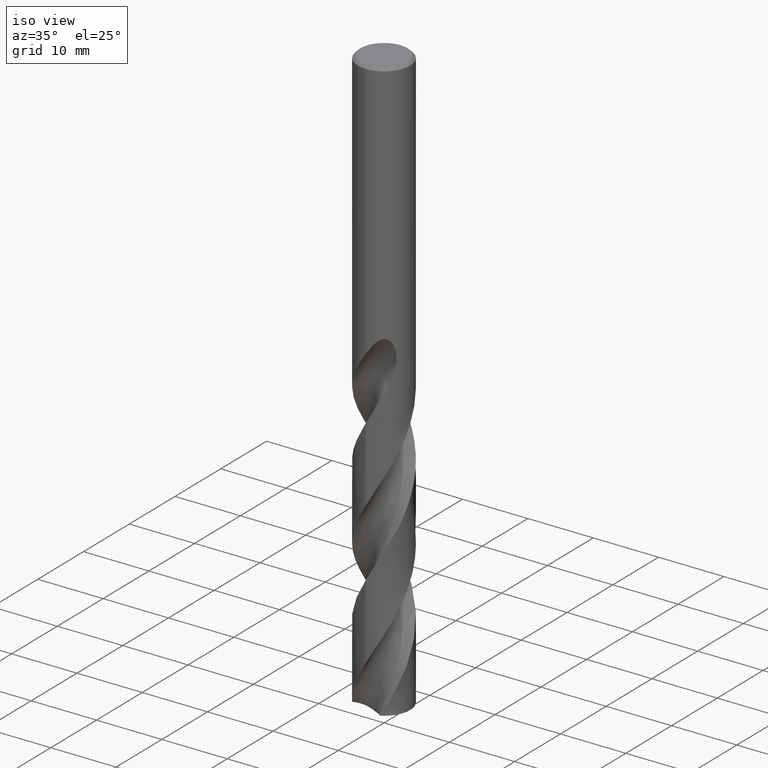
[diagram: clean part render]
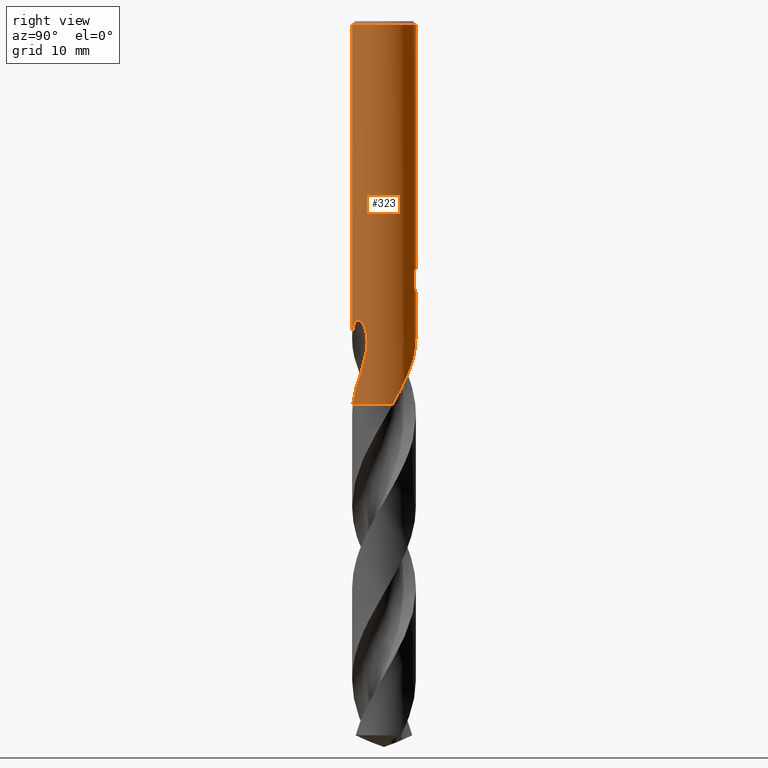
[diagram: tour spotlight — one face highlighted and labeled with its STEP entity id]
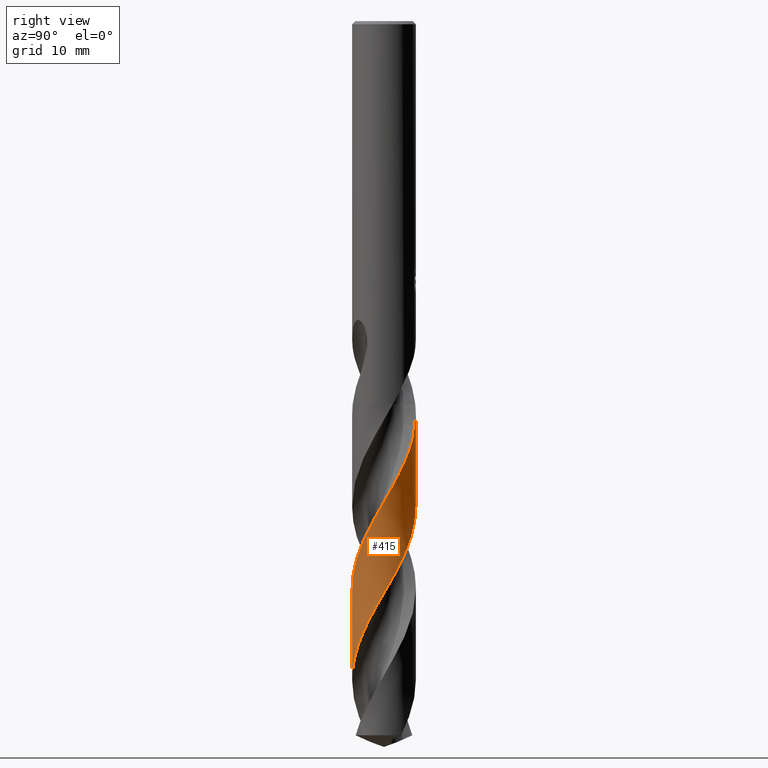
[diagram: tour spotlight — one face highlighted and labeled with its STEP entity id]
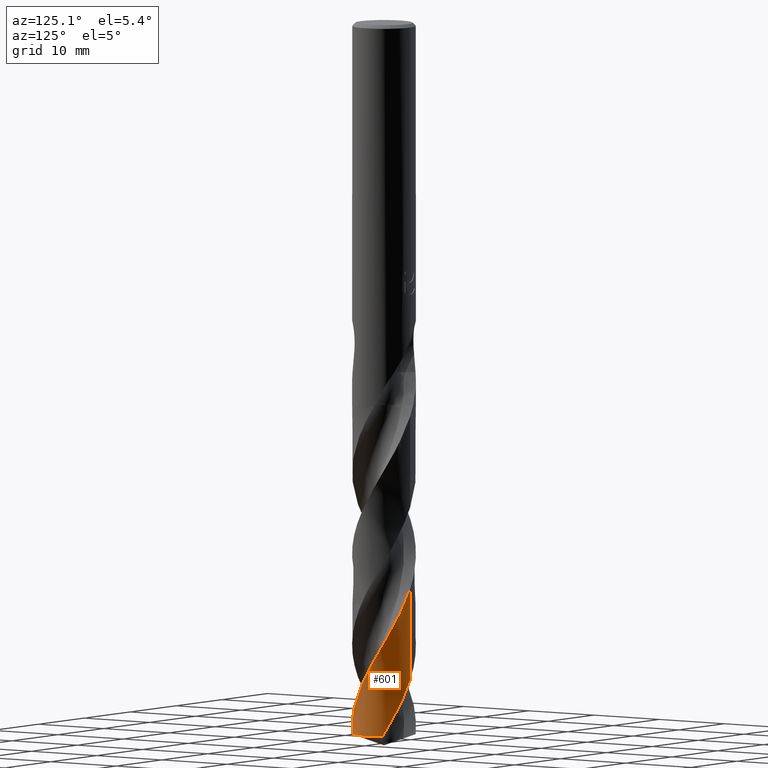
[diagram: tour spotlight — one face highlighted and labeled with its STEP entity id]
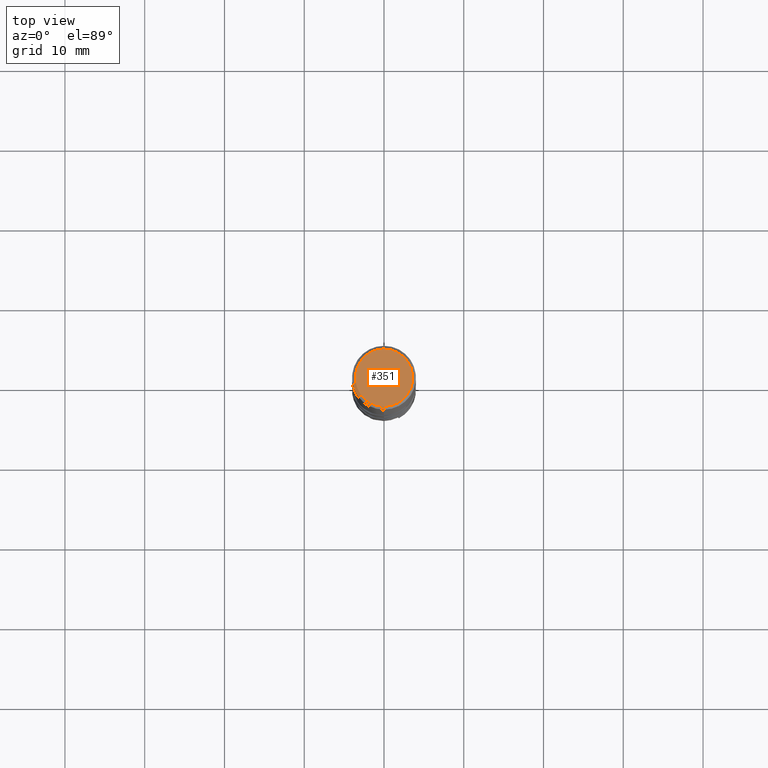
[diagram: tour spotlight — one face highlighted and labeled with its STEP entity id]
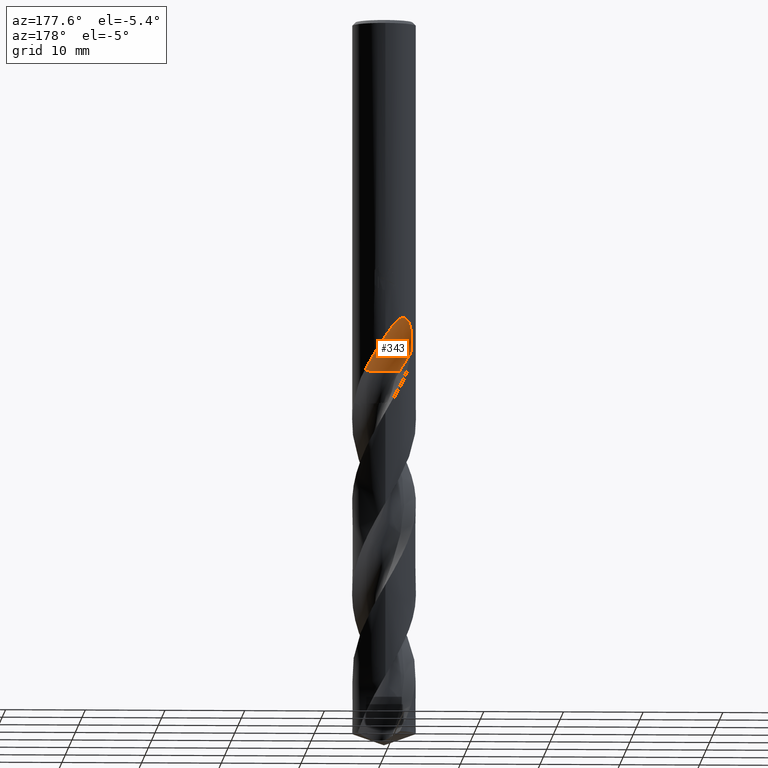
[diagram: tour spotlight — one face highlighted and labeled with its STEP entity id]
A machine part: a face-by-face anatomy tour. The part has 44 B-rep faces; the first image is the clean iso view, then the 5 largest visible faces are spotlighted one at a time (largest first), each with its STEP entity span.

Face 1 — right view, entity #323. In plain terms, the highlighted cylindrical surface (edge-blend (fillet) strip) has radius 4 mm, axis along (-0, -0, 1).
Definition (entity closure, byte-faithful):
#281=VERTEX_POINT('',#781);
#295=EDGE_CURVE('',#595,#367,#795,.T.);
#323=ADVANCED_FACE('',(#826),#827,.T.);
#345=VERTEX_POINT('',#851);
#361=EDGE_CURVE('',#407,#367,#869,.T.);
#365=VERTEX_POINT('',#874);
#367=VERTEX_POINT('',#876);
#381=EDGE_CURVE('',#627,#447,#891,.T.);
#385=EDGE_CURVE('',#399,#595,#895,.T.);
#391=EDGE_CURVE('',#527,#433,#902,.T.);
#393=EDGE_CURVE('',#487,#743,#904,.T.);
#399=VERTEX_POINT('',#911);
#407=VERTEX_POINT('',#919);
#417=EDGE_CURVE('',#645,#527,#930,.T.);
#425=EDGE_CURVE('',#627,#487,#940,.T.);
#433=VERTEX_POINT('',#948);
#439=EDGE_CURVE('',#365,#345,#955,.T.);
#441=EDGE_CURVE('',#281,#475,#957,.T.);
#447=VERTEX_POINT('',#963);
#475=VERTEX_POINT('',#994);
#477=EDGE_CURVE('',#433,#399,#996,.T.);
#487=VERTEX_POINT('',#1007);
#507=VERTEX_POINT('',#1029);
#513=EDGE_CURVE('',#281,#743,#1035,.T.);
#527=VERTEX_POINT('',#1051);
#533=EDGE_CURVE('',#621,#447,#1058,.T.);
#565=EDGE_CURVE('',#345,#621,#1092,.T.);
#595=VERTEX_POINT('',#1123);
#621=VERTEX_POINT('',#1152);
#627=VERTEX_POINT('',#1158);
#645=VERTEX_POINT('',#1178);
#679=EDGE_CURVE('',#365,#507,#1215,.T.);
#711=EDGE_CURVE('',#475,#645,#1249,.T.);
#717=EDGE_CURVE('',#407,#507,#1256,.T.);
#743=VERTEX_POINT('',#1285);
#781=CARTESIAN_POINT('',(-6.37761657961682E-016,4.0,-34.0310253601033));
#795=B_SPLINE_CURVE_WITH_KNOTS('',3,(#1477,#1478,#1479,#1480,#1481,#1482,#1483,#1484,#1485,#1486,#1487,#1488,#1489,#1490,#1491,#1492,#1493,#1494,#1495,#1496,#1497,#1498,#1499,#1500,#1501,#1502,#1503),.UNSPECIFIED.,.F.,.F.,(4,2,3,2,2,2,2,2,2,2,2,2,4),(-0.543018145553855,-0.271509072776928,0.0,0.271509072776927,0.543018145553855,0.815414280910791,1.08781041626773,1.35870467547365,1.62959893467958,1.90093601549038,2.17227309630118,2.44361017711198,2.71494725792278),.UNSPECIFIED.);
#826=FACE_OUTER_BOUND('',#2325,.T.);
#827=CYLINDRICAL_SURFACE('',#2326,4.0);
#851=CARTESIAN_POINT('',(3.25456865325919,-2.32546401417495,-41.862679091506));
#869=LINE('',#2697,#2698);
#874=CARTESIAN_POINT('',(1.18285448710148E-012,-4.0,-39.8010886237942));
#876=CARTESIAN_POINT('',(0.0,4.0,-32.0232688117743));
#891=CIRCLE('',#3412,4.0);
#895=B_SPLINE_CURVE_WITH_KNOTS('',3,(#3418,#3419,#3420,#3421,#3422,#3423,#3424,#3425,#3426,#3427),.UNSPECIFIED.,.F.,.F.,(4,2,2,2,4),(0.621618550720989,0.932427826081483,1.24323710144198,1.55341597198189,1.8635948425218),.UNSPECIFIED.);
#902=B_SPLINE_CURVE_WITH_KNOTS('',3,(#3435,#3436,#3437,#3438,#3439,#3440,#3441,#3442,#3443,#3444),.UNSPECIFIED.,.F.,.F.,(4,2,2,2,4),(8.07922159159579,8.38940045176896,8.69957931194214,9.01038857642139,9.32119784090064),.UNSPECIFIED.);
#904=B_SPLINE_CURVE_WITH_KNOTS('',3,(#3447,#3448,#3449,#3450,#3451,#3452,#3453,#3454,#3455,#3456,#3457,#3458,#3459,#3460,#3461,#3462,#3463,#3464,#3465,#3466,#3467,#3468,#3469,#3470,#3471,#3472,#3473,#3474,#3475,#3476),.UNSPECIFIED.,.F.,.F.,(4,2,2,2,2,2,2,2,2,2,2,2,2,2,4),(0.0,1.95977624076947,3.02985967370601,3.99908599318628,5.12509377225497,6.47768674139893,7.65000215056745,8.18125540149243,8.56953673186918,8.93696441781958,9.40306833899562,10.0849972789289,11.0544394482072,11.6888355435218,12.3555427460094),.UNSPECIFIED.);
#911=CARTESIAN_POINT('',(1.33721006514658,3.76986329217263,-31.5150484364821));
#919=CARTESIAN_POINT('',(0.0,4.0,-0.399999999999999));
#930=LINE('',#3786,#3787);
#940=B_SPLINE_CURVE_WITH_KNOTS('',3,(#3825,#3826,#3827,#3828,#3829,#3830,#3831,#3832,#3833,#3834,#3835,#3836),.UNSPECIFIED.,.F.,.F.,(4,2,2,2,2,4),(0.0,0.673281679182227,1.64337025448362,2.38350249224297,3.38728835496563,5.3568489773321),.UNSPECIFIED.);
#948=CARTESIAN_POINT('',(1.33721006514658,3.76986329217263,-33.2901657003257));
#955=B_SPLINE_CURVE_WITH_KNOTS('',3,(#3882,#3883,#3884,#3885,#3886,#3887,#3888,#3889,#3890,#3891,#3892,#3893,#3894,#3895,#3896,#3897,#3898,#3899,#3900,#3901,#3902,#3903,#3904,#3905,#3906,#3907,#3908,#3909,#3910,#3911),.UNSPECIFIED.,.F.,.F.,(4,2,2,2,2,2,2,2,2,2,2,2,2,2,4),(0.0,1.9597762407695,3.02985967370596,3.99908599318602,5.1250937722548,6.47768674139874,7.65000215056726,8.18125540149219,8.56953673186899,8.93696441781943,9.40306833899536,10.0849972789282,11.0544394482058,11.6888355435201,12.3555427460073),.UNSPECIFIED.);
#957=B_SPLINE_CURVE_WITH_KNOTS('',3,(#3914,#3915,#3916,#3917,#3918,#3919,#3920,#3921,#3922,#3923,#3924,#3925,#3926,#3927,#3928,#3929),.UNSPECIFIED.,.F.,.F.,(4,2,2,2,2,2,2,4),(5.59330412183837,6.21519943861119,6.52611580040833,6.83703216220547,7.14794852400261,7.45886488579976,7.76904377517712,8.07922266455448),.UNSPECIFIED.);
#963=CARTESIAN_POINT('',(0.794661376557659,-3.92026954387163,-48.0));
#994=CARTESIAN_POINT('',(0.29010312703583,3.98946615171554,-33.9998328990228));
#996=LINE('',#4666,#4667);
#1007=CARTESIAN_POINT('',(2.54885976013372,3.08274454393663,-44.053));
#1029=CARTESIAN_POINT('',(4.89842541528951E-016,-4.0,-0.399999999999999));
#1035=LINE('',#4773,#4774);
#1051=CARTESIAN_POINT('',(0.873560781758956,3.90344611344549,-33.7587351791531));
#1058=B_SPLINE_CURVE_WITH_KNOTS('',3,(#5439,#5440,#5441,#5442,#5443,#5444,#5445,#5446),.UNSPECIFIED.,.F.,.F.,(4,2,2,4),(0.0,1.28011505201426,2.42067889424109,4.38884524331585),.UNSPECIFIED.);
#1092=B_SPLINE_CURVE_WITH_KNOTS('',3,(#5643,#5644,#5645,#5646),.UNSPECIFIED.,.F.,.F.,(4,4),(0.0,2.29887959846367),.UNSPECIFIED.);
#1123=CARTESIAN_POINT('',(0.799431726384364,3.91929954390451,-31.000000276873));
#1152=CARTESIAN_POINT('',(2.78030937116489,-2.87573987012259,-44.053));
#1158=CARTESIAN_POINT('',(3.8397622781994,1.12081472461642,-48.0));
#1178=CARTESIAN_POINT('',(0.873560781758957,3.90344611344549,-32.3198931596091));
#1215=LINE('',#6910,#6911);
#1249=ELLIPSE('',#7570,12.1919782934791,4.0);
#1256=CIRCLE('',#7801,4.0);
#1285=CARTESIAN_POINT('',(-1.18618515617536E-012,4.0,-39.8010886237942));
#1477=CARTESIAN_POINT('',(0.665279195004375,3.9442874632428,-30.8137529884524));
#1478=CARTESIAN_POINT('',(0.72877088492158,3.9335783806135,-30.8773526603125));
#1479=CARTESIAN_POINT('',(0.783944488018489,3.92260552826083,-30.957920893425));
#1480=CARTESIAN_POINT('',(0.857267073993339,3.90723639918054,-31.134802544027));
#1481=CARTESIAN_POINT('',(0.875400981188567,3.90303383563787,-31.2311389883278));
#1482=CARTESIAN_POINT('',(0.875400981188567,3.90303383563787,-31.3216420125868));
#1483=CARTESIAN_POINT('',(0.875400981188567,3.90303383563787,-31.4121450368458));
#1484=CARTESIAN_POINT('',(0.857267073993339,3.90723639918054,-31.5084814811466));
#1485=CARTESIAN_POINT('',(0.783944488018488,3.92260552826083,-31.6853631317485));
#1486=CARTESIAN_POINT('',(0.728770884921581,3.9335783806135,-31.765931364861));
#1487=CARTESIAN_POINT('',(0.601580067811904,3.95503153411898,-31.8933384986505));
#1488=CARTESIAN_POINT('',(0.520902117238449,3.96693827151805,-31.9487071231089));
#1489=CARTESIAN_POINT('',(0.343752086871948,3.98619778335453,-32.0223037477669));
#1490=CARTESIAN_POINT('',(0.247255556938652,3.99338316413851,-32.0405166027747));
#1491=CARTESIAN_POINT('',(0.0662974670001867,4.00046977119903,-32.0405166027747));
#1492=CARTESIAN_POINT('',(-0.0299674229107091,4.00086780861984,-32.0224830783564));
#1493=CARTESIAN_POINT('',(-0.206991592502204,3.99562207288533,-31.9491870835923));
#1494=CARTESIAN_POINT('',(-0.287758268875903,3.99014940483369,-31.8939303320089));
#1495=CARTESIAN_POINT('',(-0.415384305359873,3.97889009382894,-31.7664425414649));
#1496=CARTESIAN_POINT('',(-0.470753835570468,3.9723749730993,-31.6856442592887));
#1497=CARTESIAN_POINT('',(-0.544239101864661,3.96297563900076,-31.5084730190186));
#1498=CARTESIAN_POINT('',(-0.562348199187247,3.96027328638705,-31.4120877061904));
#1499=CARTESIAN_POINT('',(-0.562348199187247,3.96027328638705,-31.2311963189832));
#1500=CARTESIAN_POINT('',(-0.544239101864661,3.96297563900076,-31.134811006155));
#1501=CARTESIAN_POINT('',(-0.470753835570468,3.9723749730993,-30.9576397658849));
#1502=CARTESIAN_POINT('',(-0.415384305359873,3.97889009382894,-30.8768414837086));
#1503=CARTESIAN_POINT('',(-0.351519173230209,3.98452434687649,-30.8130455309993));
#2325=EDGE_LOOP('',(#8826,#8827,#8828,#8829,#8830,#8831,#8832,#8833,#8834,#8835,#8836,#8837,#8838,#8839,#8840,#8841,#8842));
#2326=AXIS2_PLACEMENT_3D('',#8843,#8844,#8845);
#2697=CARTESIAN_POINT('',(-4.89842541528951E-016,4.0,-42.0));
#2698=VECTOR('',#8900,1.0);
#3412=AXIS2_PLACEMENT_3D('',#8920,#8921,#8922);
#3418=CARTESIAN_POINT('',(1.47492143493287,3.71814560779639,-31.7759604553563));
#3419=CARTESIAN_POINT('',(1.43317985453682,3.73470372211652,-31.6758249567768));
#3420=CARTESIAN_POINT('',(1.38139934199221,3.7544274523428,-31.5801212011595));
#3421=CARTESIAN_POINT('',(1.26216864159784,3.79617175011376,-31.4033868968692));
#3422=CARTESIAN_POINT('',(1.1947060468711,3.8181497487877,-31.3223546663791));
#3423=CARTESIAN_POINT('',(1.0513319169546,3.86008660392055,-31.1790629248092));
#3424=CARTESIAN_POINT('',(0.970367433401024,3.88157055479408,-31.1117010969221));
#3425=CARTESIAN_POINT('',(0.793686081906958,3.92151314302242,-30.9925943353462));
#3426=CARTESIAN_POINT('',(0.697967348067752,3.93993643158254,-30.9408403180509));
#3427=CARTESIAN_POINT('',(0.597825544213158,3.95507327601983,-30.8991318677171));
#3435=CARTESIAN_POINT('',(0.597825566619951,3.95507327263295,-33.9060822529338));
#3436=CARTESIAN_POINT('',(0.69796736707036,3.93993642812991,-33.8643738039892));
#3437=CARTESIAN_POINT('',(0.793686097648071,3.92151313976681,-33.8126197884223));
#3438=CARTESIAN_POINT('',(0.970367443122637,3.8815705522933,-33.6935130308195));
#3439=CARTESIAN_POINT('',(1.05133192391794,3.86008660197544,-33.6261512051772));
#3440=CARTESIAN_POINT('',(1.19470604884202,3.81814974811935,-33.4828594684698));
#3441=CARTESIAN_POINT('',(1.26216864117972,3.79617175021539,-33.401827240791));
#3442=CARTESIAN_POINT('',(1.38139933735972,3.75442745400946,-33.2250929426288));
#3443=CARTESIAN_POINT('',(1.43317984807825,3.73470372457547,-33.1293891903286));
#3444=CARTESIAN_POINT('',(1.47492142700079,3.7181456109429,-33.0292536952238));
#3447=CARTESIAN_POINT('',(2.54885976013372,3.08274454393663,-44.053));
#3448=CARTESIAN_POINT('',(2.28500523660261,3.30090345005828,-43.4966417767988));
#3449=CARTESIAN_POINT('',(1.98163231588755,3.49483155995579,-42.977936421169));
#3450=CARTESIAN_POINT('',(1.45264038690851,3.73253113273964,-42.1114036522164));
#3451=CARTESIAN_POINT('',(1.26228426683794,3.80090830680974,-41.8065283302372));
#3452=CARTESIAN_POINT('',(0.893778878987872,3.90310035133813,-41.2163687713547));
#3453=CARTESIAN_POINT('',(0.717274980064568,3.93920455800775,-40.9338353559214));
#3454=CARTESIAN_POINT('',(0.33521839832061,3.99131183045806,-40.3249008687614));
#3455=CARTESIAN_POINT('',(0.126474396085212,4.00354517408276,-39.9937333591078));
#3456=CARTESIAN_POINT('',(-0.337092631504132,3.99379417253619,-39.2852567198373));
#3457=CARTESIAN_POINT('',(-0.611941054861174,3.96363461880695,-38.8821257542007));
#3458=CARTESIAN_POINT('',(-1.14195068256935,3.84183599193105,-38.2173906398542));
#3459=CARTESIAN_POINT('',(-1.43518376737336,3.74904084478621,-37.8930259656217));
#3460=CARTESIAN_POINT('',(-1.87898919238026,3.53454780533531,-37.5892910671245));
#3461=CARTESIAN_POINT('',(-2.02589175203402,3.45357173492742,-37.5142260075858));
#3462=CARTESIAN_POINT('',(-2.28329880223286,3.28684001880265,-37.4565626198684));
#3463=CARTESIAN_POINT('',(-2.38887588461981,3.21090914700583,-37.4554859280565));
#3464=CARTESIAN_POINT('',(-2.58551889986573,3.05450740730473,-37.5059535003711));
#3465=CARTESIAN_POINT('',(-2.67152074136922,2.97896849222708,-37.5532713078944));
#3466=CARTESIAN_POINT('',(-2.8465335331701,2.81343086569157,-37.7013232644774));
#3467=CARTESIAN_POINT('',(-2.92750237022738,2.72764511666503,-37.8106329899809));
#3468=CARTESIAN_POINT('',(-3.09335272716449,2.54032566393313,-38.1099569518954));
#3469=CARTESIAN_POINT('',(-3.17262589307935,2.43831682967142,-38.331966872197));
#3470=CARTESIAN_POINT('',(-3.32169614375785,2.23348439746403,-38.953125946192));
#3471=CARTESIAN_POINT('',(-3.37558848211908,2.14623565430961,-39.3955071231946));
#3472=CARTESIAN_POINT('',(-3.40226299691169,2.10356902640446,-40.21424616535));
#3473=CARTESIAN_POINT('',(-3.39599104218287,2.1139685132873,-40.5403087544243));
#3474=CARTESIAN_POINT('',(-3.35169145718829,2.18356392775092,-41.2020529092011));
#3475=CARTESIAN_POINT('',(-3.31213718412787,2.24489483106254,-41.5352437340999));
#3476=CARTESIAN_POINT('',(-3.25456865325918,2.32546401417496,-41.862679091506));
#3786=CARTESIAN_POINT('',(0.873560781758957,3.90344611344549,-33.0393141693811));
#3787=VECTOR('',#8950,1.0);
#3825=CARTESIAN_POINT('',(3.83976227819939,1.12081472461642,-48.0));
#3826=CARTESIAN_POINT('',(3.80832560203784,1.22851259887338,-47.805627977272));
#3827=CARTESIAN_POINT('',(3.77216141738727,1.3355699424685,-47.6116524157746));
#3828=CARTESIAN_POINT('',(3.67205241181794,1.59465136283516,-47.1394654932676));
#3829=CARTESIAN_POINT('',(3.60630844881775,1.73790509062416,-46.8798371483716));
#3830=CARTESIAN_POINT('',(3.47330951293927,1.98774355459478,-46.3937512436308));
#3831=CARTESIAN_POINT('',(3.41232867950816,2.09032213826649,-46.1833227712735));
#3832=CARTESIAN_POINT('',(3.26298928480476,2.31896745944481,-45.6789622752263));
#3833=CARTESIAN_POINT('',(3.19371862869683,2.4113766255632,-45.4382280753419));
#3834=CARTESIAN_POINT('',(2.96971512491096,2.69015032842839,-44.8007407991685));
#3835=CARTESIAN_POINT('',(2.78667457982286,2.88611565833489,-44.4202380786655));
#3836=CARTESIAN_POINT('',(2.54885976013373,3.08274454393663,-44.053));
#3882=CARTESIAN_POINT('',(-2.54885976013373,-3.08274454393663,-44.053));
#3883=CARTESIAN_POINT('',(-2.28500523660261,-3.30090345005828,-43.4966417767988));
#3884=CARTESIAN_POINT('',(-1.98163231588754,-3.49483155995579,-42.977936421169));
#3885=CARTESIAN_POINT('',(-1.45264038690853,-3.73253113273964,-42.1114036522165));
#3886=CARTESIAN_POINT('',(-1.26228426683797,-3.80090830680973,-41.8065283302373));
#3887=CARTESIAN_POINT('',(-0.893778878987868,-3.90310035133814,-41.2163687713546));
#3888=CARTESIAN_POINT('',(-0.717274980064561,-3.93920455800776,-40.9338353559214));
#3889=CARTESIAN_POINT('',(-0.335218398320563,-3.99131183045807,-40.3249008687613));
#3890=CARTESIAN_POINT('',(-0.12647439608519,-4.00354517408276,-39.9937333591077));
#3891=CARTESIAN_POINT('',(0.337092631504076,-3.99379417253619,-39.2852567198373));
#3892=CARTESIAN_POINT('',(0.611941054861158,-3.96363461880696,-38.8821257542007));
#3893=CARTESIAN_POINT('',(1.14195068256936,-3.84183599193105,-38.2173906398542));
#3894=CARTESIAN_POINT('',(1.43518376737336,-3.74904084478621,-37.8930259656217));
#3895=CARTESIAN_POINT('',(1.87898919238024,-3.53454780533532,-37.5892910671245));
#3896=CARTESIAN_POINT('',(2.02589175203401,-3.45357173492743,-37.5142260075858));
#3897=CARTESIAN_POINT('',(2.28329880223289,-3.28684001880263,-37.4565626198684));
#3898=CARTESIAN_POINT('',(2.38887588461982,-3.21090914700582,-37.4554859280565));
#3899=CARTESIAN_POINT('',(2.58551889986571,-3.05450740730474,-37.5059535003711));
#3900=CARTESIAN_POINT('',(2.67152074136919,-2.9789684922271,-37.5532713078944));
#3901=CARTESIAN_POINT('',(2.8465335331701,-2.81343086569157,-37.7013232644774));
#3902=CARTESIAN_POINT('',(2.92750237022739,-2.72764511666502,-37.8106329899809));
#3903=CARTESIAN_POINT('',(3.09335272716445,-2.54032566393318,-38.1099569518953));
#3904=CARTESIAN_POINT('',(3.17262589307932,-2.43831682967145,-38.3319668721969));
#3905=CARTESIAN_POINT('',(3.32169614375787,-2.233484397464,-38.953125946192));
#3906=CARTESIAN_POINT('',(3.37558848211908,-2.14623565430961,-39.3955071231947));
#3907=CARTESIAN_POINT('',(3.40226299691169,-2.10356902640446,-40.21424616535));
#3908=CARTESIAN_POINT('',(3.39599104218287,-2.1139685132873,-40.5403087544243));
#3909=CARTESIAN_POINT('',(3.35169145718829,-2.18356392775092,-41.2020529092011));
#3910=CARTESIAN_POINT('',(3.31213718412786,-2.24489483106254,-41.5352437340999));
#3911=CARTESIAN_POINT('',(3.25456865325918,-2.32546401417496,-41.862679091506));
#3914=CARTESIAN_POINT('',(-1.53169074080201,3.69512157777541,-33.0291469804961));
#3915=CARTESIAN_POINT('',(-1.44828662161398,3.72969396308271,-33.2292685117474));
#3916=CARTESIAN_POINT('',(-1.3235119204923,3.77766697431007,-33.4106519059977));
#3917=CARTESIAN_POINT('',(-1.10876972720289,3.84398770228913,-33.6255223555534));
#3918=CARTESIAN_POINT('',(-1.02784628500841,3.86675406900514,-33.6929304922165));
#3919=CARTESIAN_POINT('',(-0.851215741256186,3.9094356085587,-33.8121513963803));
#3920=CARTESIAN_POINT('',(-0.755506440008018,3.92931563110609,-33.8639734861066));
#3921=CARTESIAN_POINT('',(-0.55516132520436,3.96258844897707,-33.9475385932463));
#3922=CARTESIAN_POINT('',(-0.450345578096092,3.97598591776774,-33.9793474763458));
#3923=CARTESIAN_POINT('',(-0.238765831475676,3.99427916347003,-34.0212208804589));
#3924=CARTESIAN_POINT('',(-0.131998351317953,3.99916459194608,-34.0312723335086));
#3925=CARTESIAN_POINT('',(0.0750281946656646,4.00063255933723,-34.0312723335086));
#3926=CARTESIAN_POINT('',(0.181611397509719,3.99727906083033,-34.0212676362976));
#3927=CARTESIAN_POINT('',(0.392937729655654,3.98206259750675,-33.9795209106323));
#3928=CARTESIAN_POINT('',(0.497684032548134,3.97021008398904,-33.9477911393989));
#3929=CARTESIAN_POINT('',(0.597825841435798,3.9550732310934,-33.9060826866649));
#4666=CARTESIAN_POINT('',(1.33721006514658,3.76986329217263,-32.4026070684039));
#4667=VECTOR('',#9013,1.0);
#4773=CARTESIAN_POINT('',(-4.89842541528951E-016,4.0,-42.0));
#4774=VECTOR('',#9050,1.0);
#5439=CARTESIAN_POINT('',(2.78030937116489,-2.87573987012259,-44.053));
#5440=CARTESIAN_POINT('',(2.63461355333886,-3.01660081928207,-44.4285104439179));
#5441=CARTESIAN_POINT('',(2.48046719966969,-3.14554869945512,-44.7836922176919));
#5442=CARTESIAN_POINT('',(2.1445734140816,-3.38205117991335,-45.4779420872469));
#5443=CARTESIAN_POINT('',(1.97756721893961,-3.48289751067352,-45.8057329632955));
#5444=CARTESIAN_POINT('',(1.48234047670309,-3.73172710376535,-46.7685080897232));
#5445=CARTESIAN_POINT('',(1.14348591611057,-3.84956078630379,-47.3853515444771));
#5446=CARTESIAN_POINT('',(0.794661376557661,-3.92026954387163,-48.0));
#5643=CARTESIAN_POINT('',(3.2545686533118,-2.32546401410131,-41.862679091535));
#5644=CARTESIAN_POINT('',(3.12561195037748,-2.50594345410102,-42.5961657022424));
#5645=CARTESIAN_POINT('',(2.9701846549125,-2.69216553635172,-43.3340172614407));
#5646=CARTESIAN_POINT('',(2.78030937116489,-2.87573987012259,-44.053));
#6910=CARTESIAN_POINT('',(4.89842541528951E-016,-4.0,-42.0));
#6911=VECTOR('',#9225,1.0);
#7570=AXIS2_PLACEMENT_3D('',#9243,#9244,#9245);
#7801=AXIS2_PLACEMENT_3D('',#9251,#9252,#9253);
#8826=ORIENTED_EDGE('',*,*,#361,.F.);
#8827=ORIENTED_EDGE('',*,*,#717,.T.);
#8828=ORIENTED_EDGE('',*,*,#679,.F.);
#8829=ORIENTED_EDGE('',*,*,#439,.T.);
#8830=ORIENTED_EDGE('',*,*,#565,.T.);
#8831=ORIENTED_EDGE('',*,*,#533,.T.);
#8832=ORIENTED_EDGE('',*,*,#381,.F.);
#8833=ORIENTED_EDGE('',*,*,#425,.T.);
#8834=ORIENTED_EDGE('',*,*,#393,.T.);
#8835=ORIENTED_EDGE('',*,*,#513,.F.);
#8836=ORIENTED_EDGE('',*,*,#441,.T.);
#8837=ORIENTED_EDGE('',*,*,#711,.T.);
#8838=ORIENTED_EDGE('',*,*,#417,.T.);
#8839=ORIENTED_EDGE('',*,*,#391,.T.);
#8840=ORIENTED_EDGE('',*,*,#477,.T.);
#8841=ORIENTED_EDGE('',*,*,#385,.T.);
#8842=ORIENTED_EDGE('',*,*,#295,.T.);
#8843=CARTESIAN_POINT('',(0.0,0.0,-42.0));
#8844=DIRECTION('',(-0.0,-0.0,1.0));
#8845=DIRECTION('',(0.0,1.0,0.0));
#8900=DIRECTION('',(0.0,0.0,-1.0));
#8920=CARTESIAN_POINT('',(0.0,0.0,-48.0));
#8921=DIRECTION('',(0.0,0.0,-1.0));
#8922=DIRECTION('',(0.0,1.0,0.0));
#8950=DIRECTION('',(0.0,0.0,-1.0));
#9013=DIRECTION('',(-0.0,-0.0,1.0));
#9050=DIRECTION('',(0.0,0.0,-1.0));
#9225=DIRECTION('',(-0.0,-0.0,1.0));
#9243=CARTESIAN_POINT('',(0.0,0.0,-34.8351219173269));
#9244=DIRECTION('',(0.944648353914092,0.0,-0.328084573619969));
#9245=DIRECTION('',(0.328084573619968,-0.0,0.944648353914092));
#9251=CARTESIAN_POINT('',(0.0,0.0,-0.399999999999999));
#9252=DIRECTION('',(0.0,0.0,-1.0));
#9253=DIRECTION('',(0.0,1.0,0.0));

Face 2 — right view, entity #415. In plain terms, the highlighted conical surface has half-angle 0 deg.
Definition (entity closure, byte-faithful):
#415=ADVANCED_FACE('',(#927),#928,.T.);
#443=EDGE_CURVE('',#591,#539,#959,.T.);
#463=EDGE_CURVE('',#749,#539,#981,.T.);
#495=EDGE_CURVE('',#591,#747,#1015,.T.);
#539=VERTEX_POINT('',#1064);
#571=EDGE_CURVE('',#749,#747,#1098,.T.);
#591=VERTEX_POINT('',#1118);
#747=VERTEX_POINT('',#1290);
#749=VERTEX_POINT('',#1292);
#927=FACE_OUTER_BOUND('',#3782,.T.);
#928=CONICAL_SURFACE('',#3783,3.99995,2.4070795639818E-006);
#959=B_SPLINE_CURVE_WITH_KNOTS('',3,(#3932,#3933,#3934,#3935,#3936,#3937,#3938,#3939,#3940,#3941,#3942,#3943,#3944,#3945,#3946,#3947,#3948,#3949,#3950,#3951,#3952,#3953,#3954,#3955,#3956,#3957,#3958,#3959,#3960,#3961,#3962,#3963,#3964,#3965,#3966,#3967,#3968,#3969,#3970,#3971,#3972,#3973,#3974,#3975,#3976,#3977,#3978,#3979,#3980,#3981,#3982,#3983,#3984,#3985,#3986,#3987,#3988,#3989,#3990,#3991,#3992,#3993,#3994,#3995,#3996,#3997,#3998,#3999,#4000,#4001,#4002,#4003,#4004,#4005,#4006,#4007,#4008,#4009),.UNSPECIFIED.,.F.,.F.,(4,2,2,2,2,2,2,2,2,2,2,2,2,2,2,2,2,2,2,2,2,2,2,2,2,2,2,2,2,2,2,2,2,2,2,2,2,2,4),(0.0,1.21470659957911,2.88992579327813,3.59007138023678,4.28474777653697,4.98429860725069,6.37461169982735,7.9079460670872,8.68124041234454,9.62887573362584,11.9234383334633,13.0172288620573,15.3865071190837,16.4278392052536,18.8122851706829,19.8323664170161,22.2415218205269,23.2421432341665,25.6875440497146,26.1771586158036,27.874988075498,28.6528375814861,29.9540321503487,32.2382772404343,33.0442702836859,34.8403077246009,35.6164893442441,36.4221297915736,38.2013132188323,40.654269277748,42.4831845101061,43.8471264385342,45.9257452140165,46.9729903106333,47.496602681216,47.7582640895791,47.8890323184533,47.9543952617943,48.0197654860722),.UNSPECIFIED.);
#981=LINE('',#4347,#4348);
#1015=LINE('',#4747,#4748);
#1064=CARTESIAN_POINT('',(2.12297517040518E-013,-3.99995567115678,-71.1280916609639));
#1098=B_SPLINE_CURVE_WITH_KNOTS('',3,(#5656,#5657,#5658,#5659,#5660,#5661,#5662,#5663,#5664,#5665,#5666,#5667,#5668,#5669,#5670,#5671,#5672,#5673,#5674,#5675,#5676,#5677,#5678,#5679,#5680,#5681,#5682,#5683,#5684,#5685,#5686,#5687,#5688,#5689,#5690,#5691,#5692,#5693,#5694,#5695,#5696,#5697,#5698,#5699,#5700,#5701,#5702,#5703,#5704,#5705,#5706,#5707,#5708,#5709,#5710,#5711,#5712,#5713,#5714,#5715,#5716,#5717,#5718,#5719,#5720,#5721),.UNSPECIFIED.,.F.,.F.,(4,2,2,2,2,2,2,2,2,2,2,2,2,2,2,2,2,2,2,2,2,2,2,2,2,2,2,2,2,2,2,2,4),(0.0,0.0493956605018793,2.54333531476122,4.95671834429746,5.16207092435844,6.82021950937022,7.65092987717426,9.3463538036189,11.0225692713956,12.0140537313832,13.9168993843656,16.5268397492028,17.6293815214254,18.7542731673676,21.2074778368481,22.1651578468353,24.1996691907494,26.0249008941339,27.2141217233639,29.8478591418351,30.909170222033,32.1432109357222,34.4611541620709,35.4142567823333,37.9638944035977,39.0372361317136,41.1146844201569,42.6748663187375,43.262159536113,43.7755459704738,45.5776537313877,46.4767977918427,47.3708149932341),.UNSPECIFIED.);
#1118=CARTESIAN_POINT('',(-6.36846796891337E-013,3.99990333425071,-49.3851850878904));
#1290=CARTESIAN_POINT('',(1.07844777446611E-012,3.99993090915214,-60.8409349672499));
#1292=CARTESIAN_POINT('',(-1.74724611973386E-012,-3.9999832559542,-82.5879527398801));
#3782=EDGE_LOOP('',(#8943,#8944,#8945,#8946));
#3783=AXIS2_PLACEMENT_3D('',#8947,#8948,#8949);
#3932=CARTESIAN_POINT('',(-0.792705029585013,3.92056358340638,-48.0033995222109));
#3933=CARTESIAN_POINT('',(-0.59383482498443,3.9607743290651,-48.3537986219627));
#3934=CARTESIAN_POINT('',(-0.392490693636606,3.98573529036207,-48.7046214223698));
#3935=CARTESIAN_POINT('',(0.0882340740514669,4.00864997962643,-49.5386329309252));
#3936=CARTESIAN_POINT('',(0.367671938766751,3.99275416477964,-50.0195381654185));
#3937=CARTESIAN_POINT('',(0.758599834976799,3.92904673960679,-50.7046555893634));
#3938=CARTESIAN_POINT('',(0.872930850069027,3.90523605695034,-50.9065168671398));
#3939=CARTESIAN_POINT('',(1.09826169287429,3.847920732299,-51.3088649313368));
#3940=CARTESIAN_POINT('',(1.20918506455408,3.81451757519382,-51.5092143338292));
#3941=CARTESIAN_POINT('',(1.42857255956212,3.73792052133722,-51.9114045295467));
#3942=CARTESIAN_POINT('',(1.5369389342075,3.69468578665603,-52.1130979273766));
#3943=CARTESIAN_POINT('',(1.85463271627387,3.55153027704499,-52.7158750826151));
#3944=CARTESIAN_POINT('',(2.05719761561379,3.43814936635287,-53.1158719108875));
#3945=CARTESIAN_POINT('',(2.45995593799641,3.16435909043497,-53.9594499767407));
#3946=CARTESIAN_POINT('',(2.65709545724162,3.0007640591437,-54.4009983429887));
#3947=CARTESIAN_POINT('',(2.92829345209345,2.72783283660792,-55.0662536813513));
#3948=CARTESIAN_POINT('',(3.0147442055265,2.63197734439694,-55.2890573283865));
#3949=CARTESIAN_POINT('',(3.1965123888797,2.40970077458956,-55.7853427324591));
#3950=CARTESIAN_POINT('',(3.28917217438012,2.28158308304763,-56.0583932206331));
#3951=CARTESIAN_POINT('',(3.57926870765193,1.82600999200236,-56.9939377806343));
#3952=CARTESIAN_POINT('',(3.73748820077935,1.47552387564445,-57.6529555363271));
#3953=CARTESIAN_POINT('',(3.89405544196752,0.932228356355396,-58.6301605428932));
#3954=CARTESIAN_POINT('',(3.93249376794588,0.753737353184757,-58.9450904355808));
#3955=CARTESIAN_POINT('',(4.01521096901581,0.182659832455661,-59.94445853738));
#3956=CARTESIAN_POINT('',(4.01369154464385,-0.214608719103637,-60.624692470908));
#3957=CARTESIAN_POINT('',(3.92754227041451,-0.777221460441256,-61.608449261142));
#3958=CARTESIAN_POINT('',(3.89009548891063,-0.946960137396765,-61.9084256350784));
#3959=CARTESIAN_POINT('',(3.73117045648126,-1.49523216424414,-62.8971524706884));
#3960=CARTESIAN_POINT('',(3.56420796361312,-1.85857347465211,-63.5816872882481));
#3961=CARTESIAN_POINT('',(3.25289687187391,-2.33391649327017,-64.5637706117593));
#3962=CARTESIAN_POINT('',(3.1507008410307,-2.47012269938757,-64.8576858013077));
#3963=CARTESIAN_POINT('',(2.77933928434134,-2.90447916391498,-65.8474872266538));
#3964=CARTESIAN_POINT('',(2.4737571713395,-3.1688760031394,-66.5390314241856));
#3965=CARTESIAN_POINT('',(1.99236350314178,-3.47245690249713,-67.5227045996133));
#3966=CARTESIAN_POINT('',(1.84577241614169,-3.55253618848202,-67.811081101272));
#3967=CARTESIAN_POINT('',(1.32557704866318,-3.79585684760778,-68.8057896272672));
#3968=CARTESIAN_POINT('',(0.931886639991882,-3.91124118033691,-69.5075514309156));
#3969=CARTESIAN_POINT('',(0.446263785900396,-3.9758216660708,-70.3543023518672));
#3970=CARTESIAN_POINT('',(0.364981321386528,-3.98410487481845,-70.4954491047592));
#3971=CARTESIAN_POINT('',(0.00102759966597787,-4.00996857294482,-71.126802630061));
#3972=CARTESIAN_POINT('',(-0.28285601033794,-3.99998490423543,-71.6166171276667));
#3973=CARTESIAN_POINT('',(-0.691763180625621,-3.94182350819548,-72.3312842471485));
#3974=CARTESIAN_POINT('',(-0.819323301867001,-3.91730116648105,-72.5556246135519));
#3975=CARTESIAN_POINT('',(-1.15660461152506,-3.83525056385964,-73.1556331811292));
#3976=CARTESIAN_POINT('',(-1.36299807098807,-3.76682869984755,-73.5301266777829));
#3977=CARTESIAN_POINT('',(-1.91331337021444,-3.53327106403717,-74.5655060465385));
#3978=CARTESIAN_POINT('',(-2.24117071140681,-3.33502577862284,-75.2221995905969));
#3979=CARTESIAN_POINT('',(-2.6402471804125,-3.00781542661954,-76.1141656441935));
#3980=CARTESIAN_POINT('',(-2.73989860597615,-2.91732512879175,-76.3464476937538));
#3981=CARTESIAN_POINT('',(-3.04619283011184,-2.60964917780127,-77.0978635380749));
#3982=CARTESIAN_POINT('',(-3.23316080755072,-2.3740996309937,-77.6159862460298));
#3983=CARTESIAN_POINT('',(-3.46074200949858,-2.00993556003518,-78.358801254355));
#3984=CARTESIAN_POINT('',(-3.52405596640927,-1.89674209646361,-78.5827338196086));
#3985=CARTESIAN_POINT('',(-3.64168844843744,-1.66012513060244,-79.0394399957069));
#3986=CARTESIAN_POINT('',(-3.69544529762177,-1.53673867760002,-79.2716788183717));
#3987=CARTESIAN_POINT('',(-3.84761682360034,-1.13306506021216,-80.0183345365691));
#3988=CARTESIAN_POINT('',(-3.92112715592967,-0.844305114033271,-80.5318099107777));
#3989=CARTESIAN_POINT('',(-4.01830679635739,-0.144329986432331,-81.7543755836294));
#3990=CARTESIAN_POINT('',(-4.01195937297882,0.267489301068498,-82.457775959726));
#3991=CARTESIAN_POINT('',(-3.89212313047969,0.971793844840182,-83.6950309830386));
#3992=CARTESIAN_POINT('',(-3.80664424212797,1.26599949236447,-84.2213713846719));
#3993=CARTESIAN_POINT('',(-3.60019825551746,1.75796256159103,-85.1434299202351));
#3994=CARTESIAN_POINT('',(-3.49430350224293,1.95997223293349,-85.5367438208722));
#3995=CARTESIAN_POINT('',(-3.18551846433629,2.44387943563879,-86.5316425894677));
#3996=CARTESIAN_POINT('',(-2.96168428196399,2.7109084176707,-87.1298457863471));
#3997=CARTESIAN_POINT('',(-2.57700176196112,3.064254615149,-88.0325727047202));
#3998=CARTESIAN_POINT('',(-2.44051835857482,3.17402705823469,-88.3346349999649));
#3999=CARTESIAN_POINT('',(-2.22571599101255,3.32472911760006,-88.7883582832395));
#4000=CARTESIAN_POINT('',(-2.15248940376413,3.37259943559142,-88.9395596406949));
#4001=CARTESIAN_POINT('',(-2.04040766130787,3.44073240666981,-89.1663801036557));
#4002=CARTESIAN_POINT('',(-2.00269229763772,3.46282077560761,-89.2419532456168));
#4003=CARTESIAN_POINT('',(-1.94559841443148,3.49501362133955,-89.3553056821104));
#4004=CARTESIAN_POINT('',(-1.92648614609798,3.50558485968053,-89.3930772337516));
#4005=CARTESIAN_POINT('',(-1.89769321224785,3.52120403049714,-89.4497303095198));
#4006=CARTESIAN_POINT('',(-1.88807654186313,3.52636990109415,-89.468610585401));
#4007=CARTESIAN_POINT('',(-1.86880042103514,3.53662317010942,-89.5063737016814));
#4008=CARTESIAN_POINT('',(-1.85914429686605,3.54170878540997,-89.5252491956722));
#4009=CARTESIAN_POINT('',(-1.84947166792346,3.54675267668166,-89.5441190629352));
#4347=CARTESIAN_POINT('',(4.89837979731984E-016,-3.99995,-68.7720595314676));
#4348=VECTOR('',#9004,1.0);
#4747=CARTESIAN_POINT('',(-4.8983485726238E-016,3.99995,-68.7720595314676));
#4748=VECTOR('',#9029,1.0);
#5656=CARTESIAN_POINT('',(-3.37643723205018,-2.14468450314384,-89.5441190629352));
#5657=CARTESIAN_POINT('',(-3.37203960974127,-2.15160773973687,-89.5298420468512));
#5658=CARTESIAN_POINT('',(-3.36758779153997,-2.15856930455092,-89.5154576563128));
#5659=CARTESIAN_POINT('',(-3.13514642352867,-2.51953967494594,-88.768278583085));
#5660=CARTESIAN_POINT('',(-2.85159387156475,-2.83693079791392,-88.0382298750346));
#5661=CARTESIAN_POINT('',(-2.2040713791824,-3.36309057371326,-86.598267146115));
#5662=CARTESIAN_POINT('',(-1.8488560371512,-3.57037824909479,-85.9021138021623));
#5663=CARTESIAN_POINT('',(-1.43776810882928,-3.73281922003214,-85.1319266497076));
#5664=CARTESIAN_POINT('',(-1.40538972363156,-3.7451309019673,-85.0714961268039));
#5665=CARTESIAN_POINT('',(-1.10866718230679,-3.85354051054722,-84.5213679034043));
#5666=CARTESIAN_POINT('',(-0.83437266926095,-3.92222355825971,-84.0360702778314));
#5667=CARTESIAN_POINT('',(-0.413602468577765,-3.98107049937544,-83.3034278757071));
#5668=CARTESIAN_POINT('',(-0.27236438021072,-3.99320883895427,-83.0593580681207));
#5669=CARTESIAN_POINT('',(0.157716518002625,-4.00729268274883,-82.3152197712141));
#5670=CARTESIAN_POINT('',(0.446361171326487,-3.98549551665546,-81.8126458360904));
#5671=CARTESIAN_POINT('',(1.01155680547881,-3.88049788015716,-80.8194026667996));
#5672=CARTESIAN_POINT('',(1.28599656100141,-3.79835694519585,-80.3297913828013));
#5673=CARTESIAN_POINT('',(1.70483106646208,-3.6224116625338,-79.5437914719993));
#5674=CARTESIAN_POINT('',(1.85579296960376,-3.5474005338328,-79.250309305842));
#5675=CARTESIAN_POINT('',(2.28036516353804,-3.30206735709366,-78.398736888735));
#5676=CARTESIAN_POINT('',(2.53950188542489,-3.10733494579557,-77.8451866876962));
#5677=CARTESIAN_POINT('',(3.09290898167989,-2.57504752649884,-76.520222118668));
#5678=CARTESIAN_POINT('',(3.3593591871626,-2.21625075013886,-75.7506764152092));
#5679=CARTESIAN_POINT('',(3.64697391853695,-1.65363498853119,-74.6610463344193));
#5680=CARTESIAN_POINT('',(3.72043569832062,-1.48092116626088,-74.3385821480795));
#5681=CARTESIAN_POINT('',(3.84374952265526,-1.1232907933152,-73.6843718493457));
#5682=CARTESIAN_POINT('',(3.89285133842144,-0.938920648853984,-73.3522896946364));
#5683=CARTESIAN_POINT('',(4.00660532142587,-0.344722139827954,-72.3024094122739));
#5684=CARTESIAN_POINT('',(4.02077294394861,0.0722573838916717,-71.5957748643769));
#5685=CARTESIAN_POINT('',(3.95093837859447,0.644950275501229,-70.596062745307));
#5686=CARTESIAN_POINT('',(3.92164712250613,0.804045767882711,-70.3141121959831));
#5687=CARTESIAN_POINT('',(3.80018517593651,1.2947361869562,-69.4373419718357));
#5688=CARTESIAN_POINT('',(3.67488001378967,1.61664672344881,-68.8487902225268));
#5689=CARTESIAN_POINT('',(3.36132844119091,2.19010896421107,-67.7194623196146));
#5690=CARTESIAN_POINT('',(3.1823716433245,2.44286356888176,-67.1819410403473));
#5691=CARTESIAN_POINT('',(2.84132936062453,2.8225771290395,-66.2999367719666));
#5692=CARTESIAN_POINT('',(2.69559607917947,2.96208460029407,-65.9535399814092));
#5693=CARTESIAN_POINT('',(2.19496253899932,3.37357120630001,-64.8355646501915));
#5694=CARTESIAN_POINT('',(1.80527681518527,3.59720072763566,-64.061928148931));
#5695=CARTESIAN_POINT('',(1.21767650539215,3.81433171298567,-62.9815427102496));
#5696=CARTESIAN_POINT('',(1.04501538764951,3.86519056403454,-62.6722468337628));
#5697=CARTESIAN_POINT('',(0.665779633637514,3.9496632121309,-62.0007923763144));
#5698=CARTESIAN_POINT('',(0.459164243419115,3.97892238404318,-61.637885329435));
#5699=CARTESIAN_POINT('',(-0.137849047989643,4.01656940699658,-60.5998183297282));
#5700=CARTESIAN_POINT('',(-0.52908020672857,3.98400567094734,-59.9334018297157));
#5701=CARTESIAN_POINT('',(-1.06624533752797,3.85854456460532,-58.9787151800594));
#5702=CARTESIAN_POINT('',(-1.22001307304529,3.81268483305264,-58.6993069407002));
#5703=CARTESIAN_POINT('',(-1.77235308192663,3.61127217770812,-57.6784012932428));
#5704=CARTESIAN_POINT('',(-2.14823862113425,3.40114454601942,-56.9498814839393));
#5705=CARTESIAN_POINT('',(-2.62514907168666,3.02331549336068,-55.8953137822496));
#5706=CARTESIAN_POINT('',(-2.75845169308609,2.9022016321167,-55.5813138552892));
#5707=CARTESIAN_POINT('',(-3.12514295274905,2.52081332303316,-54.6640959714939));
#5708=CARTESIAN_POINT('',(-3.3332039684609,2.23859384918738,-54.067148901277));
#5709=CARTESIAN_POINT('',(-3.62896904323992,1.70259273664088,-53.0097076681084));
#5710=CARTESIAN_POINT('',(-3.73270277467611,1.46112157265699,-52.5541648204049));
#5711=CARTESIAN_POINT('',(-3.84193018560296,1.11739734119137,-51.9298916873407));
#5712=CARTESIAN_POINT('',(-3.86831359988876,1.02232555386938,-51.7593432787553));
#5713=CARTESIAN_POINT('',(-3.91112234237464,0.842508955064557,-51.4393712566976));
#5714=CARTESIAN_POINT('',(-3.92837236399714,0.758018018529261,-51.2899944861498));
#5715=CARTESIAN_POINT('',(-3.99381617197694,0.374599047269241,-50.6168572302976));
#5716=CARTESIAN_POINT('',(-4.01074354031018,0.0711314950271219,-50.0953142263789));
#5717=CARTESIAN_POINT('',(-3.9844467900866,-0.382468973232567,-49.3102695610007));
#5718=CARTESIAN_POINT('',(-3.96715964872435,-0.532449093280806,-49.0497315146476));
#5719=CARTESIAN_POINT('',(-3.91609401836538,-0.828129146669319,-48.527704475037));
#5720=CARTESIAN_POINT('',(-3.88249672789565,-0.973679103636391,-48.265415981903));
#5721=CARTESIAN_POINT('',(-3.84044825802427,-1.11810432397114,-48.0047696247121));
#8943=ORIENTED_EDGE('',*,*,#495,.F.);
#8944=ORIENTED_EDGE('',*,*,#443,.T.);
#8945=ORIENTED_EDGE('',*,*,#463,.F.);
#8946=ORIENTED_EDGE('',*,*,#571,.T.);
#8947=CARTESIAN_POINT('',(0.0,0.0,-68.7720595314676));
#8948=DIRECTION('',(0.0,-0.0,-1.0));
#8949=DIRECTION('',(0.0,1.0,0.0));
#9004=DIRECTION('',(-2.94772492820526E-022,2.40707956397947E-006,0.999999999997103));
#9029=DIRECTION('',(-2.94772492820526E-022,2.40707956397947E-006,-0.999999999997103));

Face 3 — auxiliary view, entity #601. In plain terms, the highlighted conical surface has half-angle 0 deg.
Definition (entity closure, byte-faithful):
#357=VERTEX_POINT('',#864);
#371=EDGE_CURVE('',#405,#357,#880,.T.);
#387=VERTEX_POINT('',#897);
#405=VERTEX_POINT('',#917);
#461=EDGE_CURVE('',#523,#387,#979,.T.);
#523=VERTEX_POINT('',#1046);
#569=EDGE_CURVE('',#523,#357,#1096,.T.);
#601=ADVANCED_FACE('',(#1129),#1130,.T.);
#669=EDGE_CURVE('',#405,#387,#1204,.T.);
#864=CARTESIAN_POINT('',(3.01023582305675E-012,3.9999832559542,-82.5879527398844));
#880=B_SPLINE_CURVE_WITH_KNOTS('',3,(#3327,#3328,#3329,#3330,#3331,#3332,#3333,#3334,#3335,#3336,#3337,#3338,#3339,#3340,#3341,#3342,#3343,#3344,#3345,#3346,#3347,#3348,#3349,#3350,#3351,#3352,#3353,#3354,#3355,#3356,#3357,#3358,#3359,#3360,#3361,#3362,#3363,#3364,#3365,#3366,#3367,#3368,#3369,#3370,#3371,#3372,#3373,#3374,#3375,#3376,#3377,#3378,#3379,#3380,#3381,#3382,#3383,#3384,#3385,#3386,#3387,#3388,#3389,#3390,#3391,#3392,#3393,#3394),.UNSPECIFIED.,.F.,.F.,(4,2,2,2,2,2,2,2,2,2,2,2,2,2,2,2,2,2,2,2,2,2,2,2,2,2,2,2,2,2,2,2,2,4),(0.0,0.0493956605018674,2.54333531475925,4.95671834376508,5.11327192892611,7.42455864099268,9.9078366327271,11.061783256222,12.2180228528709,14.7432899821327,15.3721329747508,18.3471272415403,18.430731429163,20.7491586545974,23.0243803739876,25.0103426921519,25.1644680534812,27.5308029059884,28.446373840541,28.4848763047989,31.8283184665091,31.8798887462776,33.5400344731466,34.371921163922,36.0374870123545,37.8455017339473,39.5955820913231,41.8245345099349,41.9095851580214,43.2517937429364,43.7549006291056,45.5209235641333,46.4020653415621,47.2781858079344),.UNSPECIFIED.);
#897=CARTESIAN_POINT('',(1.84947166792346,-3.54675267668164,-89.5441190629352));
#917=CARTESIAN_POINT('',(3.37643723205017,2.14468450314384,-89.5441190629352));
#979=B_SPLINE_CURVE_WITH_KNOTS('',3,(#4277,#4278,#4279,#4280,#4281,#4282,#4283,#4284,#4285,#4286,#4287,#4288,#4289,#4290,#4291,#4292,#4293,#4294,#4295,#4296,#4297,#4298,#4299,#4300,#4301,#4302,#4303,#4304,#4305,#4306,#4307,#4308,#4309,#4310,#4311,#4312,#4313,#4314,#4315,#4316,#4317,#4318,#4319,#4320,#4321,#4322,#4323,#4324,#4325,#4326,#4327,#4328,#4329,#4330,#4331,#4332,#4333,#4334,#4335,#4336,#4337,#4338,#4339,#4340,#4341,#4342,#4343,#4344),.UNSPECIFIED.,.F.,.F.,(4,2,2,2,2,2,2,2,2,2,2,2,2,2,2,2,2,2,2,2,2,2,2,2,2,2,2,2,2,2,2,2,2,4),(0.0,1.21470660445528,2.88992575692301,3.66820543983101,6.72886018401619,8.27477984347292,9.89309175709029,11.4236836709163,12.9633022075795,15.2010892852707,16.8187820528851,18.3563353365538,19.8136682988432,22.16412077988,23.2174681111937,25.5895469747613,26.62190761884,29.016702483235,30.0285684083786,32.4537640772205,33.4409330301514,35.9091020663938,36.3889239319888,38.1095191270931,40.5949571447121,42.4431860010439,43.8255384808833,45.9266508747773,46.9853783580276,47.5146592901951,47.7791532860159,47.9113368759498,47.9774071174312,48.0434848055075),.UNSPECIFIED.);
#1046=CARTESIAN_POINT('',(-5.13151879605587E-014,3.99995567115679,-71.1280916609645));
#1096=LINE('',#5652,#5653);
#1129=FACE_OUTER_BOUND('',#5820,.T.);
#1130=CONICAL_SURFACE('',#5821,3.99995,2.4070795639818E-006);
#1204=CIRCLE('',#6833,4.0);
#3327=CARTESIAN_POINT('',(3.37643723205018,2.14468450314384,-89.5441190629352));
#3328=CARTESIAN_POINT('',(3.37203960974127,2.15160773973686,-89.5298420468512));
#3329=CARTESIAN_POINT('',(3.36758779153997,2.15856930455091,-89.5154576563128));
#3330=CARTESIAN_POINT('',(3.13514642352867,2.51953967494594,-88.768278583085));
#3331=CARTESIAN_POINT('',(2.85159387156475,2.83693079791392,-88.0382298750346));
#3332=CARTESIAN_POINT('',(2.20407137925213,3.36309057365659,-86.59826714627));
#3333=CARTESIAN_POINT('',(1.84885603727622,3.57037824901335,-85.9021138024111));
#3334=CARTESIAN_POINT('',(1.44542855319316,3.72979220334375,-85.146278751592));
#3335=CARTESIAN_POINT('',(1.42080692423178,3.73924093063026,-85.1002676878953));
#3336=CARTESIAN_POINT('',(1.02979113091472,3.88486048073702,-84.3733014710748));
#3337=CARTESIAN_POINT('',(0.644708660085813,3.96720574254255,-83.7035761597261));
#3338=CARTESIAN_POINT('',(-0.169000755027505,4.01866010428783,-82.2956675837848));
#3339=CARTESIAN_POINT('',(-0.591980198724435,3.9784517631108,-81.5635101233966));
#3340=CARTESIAN_POINT('',(-1.1913895178792,3.82347986272793,-80.4959880296611));
#3341=CARTESIAN_POINT('',(-1.37742522012844,3.7604378143141,-80.1585914113997));
#3342=CARTESIAN_POINT('',(-1.73863169502823,3.60769901830542,-79.4799622600142));
#3343=CARTESIAN_POINT('',(-1.91310831113954,3.51825948904597,-79.1384787759744));
#3344=CARTESIAN_POINT('',(-2.44556226099517,3.19403438477661,-78.0575453913462));
#3345=CARTESIAN_POINT('',(-2.77239155000087,2.91477218034308,-77.3304659104256));
#3346=CARTESIAN_POINT('',(-3.11759827785608,2.50831253686866,-76.404707207783));
#3347=CARTESIAN_POINT('',(-3.18302141138948,2.42474999519122,-76.2196528665193));
#3348=CARTESIAN_POINT('',(-3.53909427257262,1.9306268972001,-75.1619052414289));
#3349=CARTESIAN_POINT('',(-3.75299159443172,1.47175937265243,-74.3117688642782));
#3350=CARTESIAN_POINT('',(-3.88002583458006,0.972258911400971,-73.414298090402));
#3351=CARTESIAN_POINT('',(-3.8834175571789,0.958621404142051,-73.3898077692349));
#3352=CARTESIAN_POINT('',(-3.97892206242222,0.565787200706126,-72.6857065158225));
#3353=CARTESIAN_POINT('',(-4.01538423134703,0.174280202358847,-72.0170168056545));
#3354=CARTESIAN_POINT('',(-3.97308027933103,-0.602166297290244,-70.6747010726664));
#3355=CARTESIAN_POINT('',(-3.89678127435974,-0.981378102468641,-70.0059688227429));
#3356=CARTESIAN_POINT('',(-3.65433939110241,-1.66085999260418,-68.7609132716697));
#3357=CARTESIAN_POINT('',(-3.50222644059911,-1.961027619091,-68.1872496470361));
#3358=CARTESIAN_POINT('',(-3.30078397180879,-2.25944112282712,-67.5606503475009));
#3359=CARTESIAN_POINT('',(-3.28610512916206,-2.28073640727199,-67.515570091981));
#3360=CARTESIAN_POINT('',(-3.04256435562648,-2.62682731349986,-66.7787349089219));
#3361=CARTESIAN_POINT('',(-2.76632509844971,-2.91659289582553,-66.0984847428891));
#3362=CARTESIAN_POINT('',(-2.3285306348539,-3.25597234119932,-65.1419090085913));
#3363=CARTESIAN_POINT('',(-2.20141567575887,-3.34318188289208,-64.8754854084203));
#3364=CARTESIAN_POINT('',(-2.06452051917058,-3.42597669466734,-64.5967818404118));
#3365=CARTESIAN_POINT('',(-2.0589940887586,-3.42930090176081,-64.5855442556996));
#3366=CARTESIAN_POINT('',(-1.57078831109525,-3.72134840307619,-63.5945927660675));
#3367=CARTESIAN_POINT('',(-1.03345740580942,-3.90470202139896,-62.6469905132154));
#3368=CARTESIAN_POINT('',(-0.467376430556949,-3.97254291382357,-61.6537137039835));
#3369=CARTESIAN_POINT('',(-0.458754586063215,-3.9735479192442,-61.6385906106537));
#3370=CARTESIAN_POINT('',(-0.170855648537757,-4.00614873671254,-61.1339826470402));
#3371=CARTESIAN_POINT('',(0.111840871614959,-4.00837143169941,-60.6486700820652));
#3372=CARTESIAN_POINT('',(0.534635026028725,-3.96657397028145,-59.9161696784437));
#3373=CARTESIAN_POINT('',(0.674805469782654,-3.94513688917861,-59.672117351298));
#3374=CARTESIAN_POINT('',(1.09094603821995,-3.8587032935747,-58.937595833371));
#3375=CARTESIAN_POINT('',(1.36111894626794,-3.77186917116388,-58.44457335531));
#3376=CARTESIAN_POINT('',(1.90125270674856,-3.53258723015238,-57.4229716090278));
#3377=CARTESIAN_POINT('',(2.16695871942375,-3.3761031587902,-56.896651083308));
#3378=CARTESIAN_POINT('',(2.64932421123509,-3.0114598095705,-55.850296402593));
#3379=CARTESIAN_POINT('',(2.86588162999976,-2.80621906942595,-55.3320604829846));
#3380=CARTESIAN_POINT('',(3.30262585050598,-2.28823713342984,-54.1617205010633));
#3381=CARTESIAN_POINT('',(3.50413460233364,-1.96543975101064,-53.5156267890483));
#3382=CARTESIAN_POINT('',(3.6629305369214,-1.60699738886095,-52.8340178612273));
#3383=CARTESIAN_POINT('',(3.66872272068856,-1.59373075040396,-52.8088580327088));
#3384=CARTESIAN_POINT('',(3.76514576258795,-1.36953813639135,-52.3848196486184));
#3385=CARTESIAN_POINT('',(3.83761953617199,-1.15104359887587,-51.9884071324772));
#3386=CARTESIAN_POINT('',(3.91095179782985,-0.84330398033927,-51.4407790996717));
#3387=CARTESIAN_POINT('',(3.92822569101115,-0.758781753707727,-51.2913408256106));
#3388=CARTESIAN_POINT('',(3.99376730072387,-0.3752190516586,-50.6179264784958));
#3389=CARTESIAN_POINT('',(4.01074411077558,-0.0716290214025677,-50.0961720919378));
#3390=CARTESIAN_POINT('',(3.98447873920254,0.382160752048435,-49.3108045926961));
#3391=CARTESIAN_POINT('',(3.96719485720007,0.532204436391505,-49.0501599761729));
#3392=CARTESIAN_POINT('',(3.91612149454171,0.828010564823526,-48.5279172921929));
#3393=CARTESIAN_POINT('',(3.88251374039952,0.973620670246832,-48.2655214375159));
#3394=CARTESIAN_POINT('',(3.84044825802427,1.11810432397114,-48.0047696247121));
#4277=CARTESIAN_POINT('',(0.792705029585015,-3.92056358340639,-48.0033995222108));
#4278=CARTESIAN_POINT('',(0.593834824186104,-3.96077432922653,-48.3537986233693));
#4279=CARTESIAN_POINT('',(0.392490692018804,-3.98573529056258,-48.7046214251891));
#4280=CARTESIAN_POINT('',(-0.0882340696343566,-4.00864997924571,-49.5386329232446));
#4281=CARTESIAN_POINT('',(-0.367671927464107,-3.9927541653395,-50.019538145981));
#4282=CARTESIAN_POINT('',(-0.77145880962735,-3.92695118198488,-50.7271914779638));
#4283=CARTESIAN_POINT('',(-0.89842995417066,-3.89986023719875,-50.9515547312676));
#4284=CARTESIAN_POINT('',(-1.5170091755006,-3.73607180376826,-52.0589419833636));
#4285=CARTESIAN_POINT('',(-1.98053933554995,-3.51236660554911,-52.933156897862));
#4286=CARTESIAN_POINT('',(-2.59596266310425,-3.05395147328899,-54.2622391198227));
#4287=CARTESIAN_POINT('',(-2.78730549666999,-2.88041281069791,-54.7070437746814));
#4288=CARTESIAN_POINT('',(-3.14226854965443,-2.48965695505272,-55.6194979819782));
#4289=CARTESIAN_POINT('',(-3.30295350078418,-2.27211464723646,-56.0848036614206));
#4290=CARTESIAN_POINT('',(-3.57047533737223,-1.82100729451371,-56.9934117125087));
#4291=CARTESIAN_POINT('',(-3.67934786079763,-1.58964260354859,-57.4341718083801));
#4292=CARTESIAN_POINT('',(-3.85210502274107,-1.10753750497279,-58.3196533815615));
#4293=CARTESIAN_POINT('',(-3.91520047106557,-0.858152976048953,-58.7618530912552));
#4294=CARTESIAN_POINT('',(-4.01033481769289,-0.23596535173475,-59.8518490023335));
#4295=CARTESIAN_POINT('',(-4.01491834018042,0.139008969278411,-60.4949814059941));
#4296=CARTESIAN_POINT('',(-3.93298402856832,0.77715755658142,-61.6070511445396));
#4297=CARTESIAN_POINT('',(-3.8716152194593,1.04053150740565,-62.0725750062154));
#4298=CARTESIAN_POINT('',(-3.70135668050921,1.53787767652384,-62.9831881023121));
#4299=CARTESIAN_POINT('',(-3.5952372389739,1.77188788084894,-63.4258841320657));
#4300=CARTESIAN_POINT('',(-3.34608744566466,2.20507230038598,-64.2897756079491));
#4301=CARTESIAN_POINT('',(-3.20597348429732,2.40421179194829,-64.7087145174554));
#4302=CARTESIAN_POINT('',(-2.7952114598011,2.88786339145886,-65.8077323462778));
#4303=CARTESIAN_POINT('',(-2.49895313205537,3.14780820912527,-66.482741714667));
#4304=CARTESIAN_POINT('',(-2.02164283541117,3.4559289804258,-67.4646734162658));
#4305=CARTESIAN_POINT('',(-1.86793022409704,3.54136066362483,-67.7681241220208));
#4306=CARTESIAN_POINT('',(-1.35179493145241,3.78530526836826,-68.7568953897338));
#4307=CARTESIAN_POINT('',(-0.970987412517461,3.90045912886311,-69.4380617605234));
#4308=CARTESIAN_POINT('',(-0.408688505132852,3.98275058712962,-70.4202762566773));
#4309=CARTESIAN_POINT('',(-0.236884348359483,3.99663991898641,-70.7177526681779));
#4310=CARTESIAN_POINT('',(0.334259060949001,4.0059017201977,-71.7071146667362));
#4311=CARTESIAN_POINT('',(0.732430636125259,3.95259967752154,-72.3947301519464));
#4312=CARTESIAN_POINT('',(1.27854126315366,3.79388390574565,-73.3776669899576));
#4313=CARTESIAN_POINT('',(1.43746632714937,3.73655349054647,-73.6693053113491));
#4314=CARTESIAN_POINT('',(1.96303023771429,3.50850943658649,-74.6615998487418));
#4315=CARTESIAN_POINT('',(2.30765651237816,3.29216911366655,-75.3578116932206));
#4316=CARTESIAN_POINT('',(2.73885344484995,2.91986105705723,-76.3424572959657));
#4317=CARTESIAN_POINT('',(2.85671661783404,2.80463879514428,-76.6270522196018));
#4318=CARTESIAN_POINT('',(3.24299454561875,2.37739859501013,-77.6246658506224));
#4319=CARTESIAN_POINT('',(3.47041384829746,2.03120836144196,-78.3329531496024));
#4320=CARTESIAN_POINT('',(3.67419034340208,1.58320651866214,-79.1836241627987));
#4321=CARTESIAN_POINT('',(3.70514248393421,1.50934761888226,-79.3219824209126));
#4322=CARTESIAN_POINT('',(3.83680691174472,1.16667282576662,-79.9572383353621));
#4323=CARTESIAN_POINT('',(3.91063907095874,0.888349619588474,-80.4536944616244));
#4324=CARTESIAN_POINT('',(4.01671772718102,0.194540274794326,-81.6681444662987));
#4325=CARTESIAN_POINT('',(4.01523323699355,-0.222581514919816,-82.3800810574192));
#4326=CARTESIAN_POINT('',(3.90108363382851,-0.936174040338928,-83.6316649069106));
#4327=CARTESIAN_POINT('',(3.81735358058601,-1.23409553441174,-84.1633535277535));
#4328=CARTESIAN_POINT('',(3.61237429870208,-1.73319602185818,-85.095828443397));
#4329=CARTESIAN_POINT('',(3.50643559037577,-1.93853353020258,-85.494109172271));
#4330=CARTESIAN_POINT('',(3.19678210042452,-2.42964113422144,-86.5003395027009));
#4331=CARTESIAN_POINT('',(2.97171302545019,-2.70037506684917,-87.1047550511199));
#4332=CARTESIAN_POINT('',(2.58401370824362,-3.0584493196208,-88.0168663477417));
#4333=CARTESIAN_POINT('',(2.44632362705642,-3.16965667973837,-88.3220777241166));
#4334=CARTESIAN_POINT('',(2.22948472122813,-3.32222700941133,-88.7805384054119));
#4335=CARTESIAN_POINT('',(2.15554900824961,-3.37066834626685,-88.9333040398171));
#4336=CARTESIAN_POINT('',(2.04235391810204,-3.43958326853041,-89.1624719184842));
#4337=CARTESIAN_POINT('',(2.00425950427646,-3.46191965296364,-89.2388270357694));
#4338=CARTESIAN_POINT('',(1.94658576095606,-3.49446521876496,-89.3533524604395));
#4339=CARTESIAN_POINT('',(1.92727842782503,-3.50515075763305,-89.3915148118556));
#4340=CARTESIAN_POINT('',(1.89819024514482,-3.52093646706824,-89.4487540281918));
#4341=CARTESIAN_POINT('',(1.88847474906645,-3.52615701474369,-89.4678296109569));
#4342=CARTESIAN_POINT('',(1.86900007698601,-3.53651801138471,-89.5059833991611));
#4343=CARTESIAN_POINT('',(1.85924430169938,-3.541656636867,-89.5250541010458));
#4344=CARTESIAN_POINT('',(1.84947166792346,-3.54675267668166,-89.5441190629352));
#5652=CARTESIAN_POINT('',(-4.89856961109464E-016,3.99995,-68.7720595314676));
#5653=VECTOR('',#9103,1.0);
#5820=EDGE_LOOP('',(#9126,#9127,#9128,#9129));
#5821=AXIS2_PLACEMENT_3D('',#9130,#9131,#9132);
#6833=AXIS2_PLACEMENT_3D('',#9214,#9215,#9216);
#9103=DIRECTION('',(-2.94772492820526E-022,2.40707956397947E-006,-0.999999999997103));
#9126=ORIENTED_EDGE('',*,*,#569,.F.);
#9127=ORIENTED_EDGE('',*,*,#461,.T.);
#9128=ORIENTED_EDGE('',*,*,#669,.F.);
#9129=ORIENTED_EDGE('',*,*,#371,.T.);
#9130=CARTESIAN_POINT('',(0.0,0.0,-68.7720595314676));
#9131=DIRECTION('',(0.0,-0.0,-1.0));
#9132=DIRECTION('',(0.0,1.0,0.0));
#9214=CARTESIAN_POINT('',(0.0,0.0,-89.5441190629352));
#9215=DIRECTION('',(0.0,0.0,-1.0));
#9216=DIRECTION('',(0.0,1.0,0.0));

Face 4 — top view, entity #351. In plain terms, the highlighted planar face has unit normal (-0, 0, 1).
Definition (entity closure, byte-faithful):
#351=ADVANCED_FACE('',(#857),#858,.T.);
#413=VERTEX_POINT('',#925);
#519=VERTEX_POINT('',#1041);
#635=EDGE_CURVE('',#413,#519,#1167,.T.);
#649=EDGE_CURVE('',#519,#413,#1182,.T.);
#857=FACE_OUTER_BOUND('',#2680,.T.);
#858=PLANE('',#2681);
#925=CARTESIAN_POINT('',(4.40858287376056E-016,-3.6,0.0));
#1041=CARTESIAN_POINT('',(0.0,3.6,0.0));
#1167=CIRCLE('',#6622,3.6);
#1182=CIRCLE('',#6723,3.6);
#2680=EDGE_LOOP('',(#8888,#8889));
#2681=AXIS2_PLACEMENT_3D('',#8890,#8891,#8892);
#6622=AXIS2_PLACEMENT_3D('',#9178,#9179,#9180);
#6723=AXIS2_PLACEMENT_3D('',#9190,#9191,#9192);
#8888=ORIENTED_EDGE('',*,*,#649,.F.);
#8889=ORIENTED_EDGE('',*,*,#635,.F.);
#8890=CARTESIAN_POINT('',(0.0,1.8,0.0));
#8891=DIRECTION('',(-0.0,0.0,1.0));
#8892=DIRECTION('',(0.0,-1.0,0.0));
#9178=CARTESIAN_POINT('',(0.0,0.0,0.0));
#9179=DIRECTION('',(0.0,0.0,-1.0));
#9180=DIRECTION('',(0.0,1.0,0.0));
#9190=CARTESIAN_POINT('',(0.0,0.0,0.0));
#9191=DIRECTION('',(0.0,0.0,-1.0));
#9192=DIRECTION('',(0.0,1.0,0.0));

Face 5 — auxiliary view, entity #343. In plain terms, the highlighted face is a SurfaceOfRevolution surface.
Definition (entity closure, byte-faithful):
#289=EDGE_CURVE('',#639,#499,#789,.T.);
#343=ADVANCED_FACE('',(#848),#849,.F.);
#393=EDGE_CURVE('',#487,#743,#904,.T.);
#465=EDGE_CURVE('',#723,#639,#983,.T.);
#487=VERTEX_POINT('',#1007);
#499=VERTEX_POINT('',#1020);
#579=EDGE_CURVE('',#487,#723,#1106,.T.);
#639=VERTEX_POINT('',#1171);
#651=EDGE_CURVE('',#743,#499,#1184,.T.);
#723=VERTEX_POINT('',#1262);
#743=VERTEX_POINT('',#1285);
#789=CIRCLE('',#1450,17.3810396163249);
#848=FACE_OUTER_BOUND('',#2650,.T.);
#849=SURFACE_OF_REVOLUTION('',#2651,#2652);
#904=B_SPLINE_CURVE_WITH_KNOTS('',3,(#3447,#3448,#3449,#3450,#3451,#3452,#3453,#3454,#3455,#3456,#3457,#3458,#3459,#3460,#3461,#3462,#3463,#3464,#3465,#3466,#3467,#3468,#3469,#3470,#3471,#3472,#3473,#3474,#3475,#3476),.UNSPECIFIED.,.F.,.F.,(4,2,2,2,2,2,2,2,2,2,2,2,2,2,4),(0.0,1.95977624076947,3.02985967370601,3.99908599318628,5.12509377225497,6.47768674139893,7.65000215056745,8.18125540149243,8.56953673186918,8.93696441781958,9.40306833899562,10.0849972789289,11.0544394482072,11.6888355435218,12.3555427460094),.UNSPECIFIED.);
#983=CIRCLE('',#4351,2.66666667);
#1007=CARTESIAN_POINT('',(2.54885976013372,3.08274454393663,-44.053));
#1020=CARTESIAN_POINT('',(-3.25456865325919,2.32546401417495,-41.862679091506));
#1106=CIRCLE('',#5772,2.66666667);
#1171=CARTESIAN_POINT('',(-1.88561808545044,1.98104858454956,-44.053));
#1184=B_SPLINE_CURVE_WITH_KNOTS('',3,(#6726,#6727,#6728,#6729,#6730,#6731,#6732,#6733,#6734,#6735,#6736,#6737,#6738,#6739,#6740,#6741,#6742,#6743,#6744,#6745,#6746,#6747,#6748,#6749,#6750,#6751,#6752,#6753,#6754,#6755),.UNSPECIFIED.,.F.,.F.,(4,2,2,2,2,2,2,2,2,2,2,2,2,2,4),(0.0,1.95977624076947,3.02985967370601,3.99908599318628,5.12509377225497,6.47768674139893,7.65000215056745,8.18125540149243,8.56953673186918,8.93696441781958,9.40306833899562,10.0849972789289,11.0544394482072,11.6888355435218,12.3555427460094),.UNSPECIFIED.);
#1262=CARTESIAN_POINT('',(-0.458791990393921,1.23974987486383,-44.053));
#1285=CARTESIAN_POINT('',(-1.18618515617536E-012,4.0,-39.8010886237942));
#1450=AXIS2_PLACEMENT_3D('',#8794,#8795,#8796);
#2650=EDGE_LOOP('',(#8864,#8865,#8866,#8867,#8868));
#2651=(B_SPLINE_CURVE(3,(#8870,#8871,#8872,#8873,#8874,#8875,#8876,#8877,#8878),.UNSPECIFIED.,.F.,.F.)B_SPLINE_CURVE_WITH_KNOTS((4,1,3,1,4),(-2.85637185927229,-2.55358282198741,-2.25079378470252,-1.94800474741763,-1.64521571013274),.UNSPECIFIED.)RATIONAL_B_SPLINE_CURVE((1.09168120109991,1.03056040036664,0.969439599633363,1.03056040036664,1.09168120109991,1.03056040036664,0.969439599633363,1.03056040036664,1.09168120109991))BOUNDED_CURVE()REPRESENTATION_ITEM('')GEOMETRIC_REPRESENTATION_ITEM()CURVE());
#2652=AXIS1_PLACEMENT('',#8885,#8886);
#3447=CARTESIAN_POINT('',(2.54885976013372,3.08274454393663,-44.053));
#3448=CARTESIAN_POINT('',(2.28500523660261,3.30090345005828,-43.4966417767988));
#3449=CARTESIAN_POINT('',(1.98163231588755,3.49483155995579,-42.977936421169));
#3450=CARTESIAN_POINT('',(1.45264038690851,3.73253113273964,-42.1114036522164));
#3451=CARTESIAN_POINT('',(1.26228426683794,3.80090830680974,-41.8065283302372));
#3452=CARTESIAN_POINT('',(0.893778878987872,3.90310035133813,-41.2163687713547));
#3453=CARTESIAN_POINT('',(0.717274980064568,3.93920455800775,-40.9338353559214));
#3454=CARTESIAN_POINT('',(0.33521839832061,3.99131183045806,-40.3249008687614));
#3455=CARTESIAN_POINT('',(0.126474396085212,4.00354517408276,-39.9937333591078));
#3456=CARTESIAN_POINT('',(-0.337092631504132,3.99379417253619,-39.2852567198373));
#3457=CARTESIAN_POINT('',(-0.611941054861174,3.96363461880695,-38.8821257542007));
#3458=CARTESIAN_POINT('',(-1.14195068256935,3.84183599193105,-38.2173906398542));
#3459=CARTESIAN_POINT('',(-1.43518376737336,3.74904084478621,-37.8930259656217));
#3460=CARTESIAN_POINT('',(-1.87898919238026,3.53454780533531,-37.5892910671245));
#3461=CARTESIAN_POINT('',(-2.02589175203402,3.45357173492742,-37.5142260075858));
#3462=CARTESIAN_POINT('',(-2.28329880223286,3.28684001880265,-37.4565626198684));
#3463=CARTESIAN_POINT('',(-2.38887588461981,3.21090914700583,-37.4554859280565));
#3464=CARTESIAN_POINT('',(-2.58551889986573,3.05450740730473,-37.5059535003711));
#3465=CARTESIAN_POINT('',(-2.67152074136922,2.97896849222708,-37.5532713078944));
#3466=CARTESIAN_POINT('',(-2.8465335331701,2.81343086569157,-37.7013232644774));
#3467=CARTESIAN_POINT('',(-2.92750237022738,2.72764511666503,-37.8106329899809));
#3468=CARTESIAN_POINT('',(-3.09335272716449,2.54032566393313,-38.1099569518954));
#3469=CARTESIAN_POINT('',(-3.17262589307935,2.43831682967142,-38.331966872197));
#3470=CARTESIAN_POINT('',(-3.32169614375785,2.23348439746403,-38.953125946192));
#3471=CARTESIAN_POINT('',(-3.37558848211908,2.14623565430961,-39.3955071231946));
#3472=CARTESIAN_POINT('',(-3.40226299691169,2.10356902640446,-40.21424616535));
#3473=CARTESIAN_POINT('',(-3.39599104218287,2.1139685132873,-40.5403087544243));
#3474=CARTESIAN_POINT('',(-3.35169145718829,2.18356392775092,-41.2020529092011));
#3475=CARTESIAN_POINT('',(-3.31213718412787,2.24489483106254,-41.5352437340999));
#3476=CARTESIAN_POINT('',(-3.25456865325918,2.32546401417496,-41.862679091506));
#4351=AXIS2_PLACEMENT_3D('',#9005,#9006,#9007);
#5772=AXIS2_PLACEMENT_3D('',#9105,#9106,#9107);
#6726=CARTESIAN_POINT('',(2.54885976013372,3.08274454393663,-44.053));
#6727=CARTESIAN_POINT('',(2.28500523660261,3.30090345005828,-43.4966417767988));
#6728=CARTESIAN_POINT('',(1.98163231588755,3.49483155995579,-42.977936421169));
#6729=CARTESIAN_POINT('',(1.45264038690851,3.73253113273964,-42.1114036522164));
#6730=CARTESIAN_POINT('',(1.26228426683794,3.80090830680974,-41.8065283302372));
#6731=CARTESIAN_POINT('',(0.893778878987872,3.90310035133813,-41.2163687713547));
#6732=CARTESIAN_POINT('',(0.717274980064568,3.93920455800775,-40.9338353559214));
#6733=CARTESIAN_POINT('',(0.33521839832061,3.99131183045806,-40.3249008687614));
#6734=CARTESIAN_POINT('',(0.126474396085212,4.00354517408276,-39.9937333591078));
#6735=CARTESIAN_POINT('',(-0.337092631504132,3.99379417253619,-39.2852567198373));
#6736=CARTESIAN_POINT('',(-0.611941054861174,3.96363461880695,-38.8821257542007));
#6737=CARTESIAN_POINT('',(-1.14195068256935,3.84183599193105,-38.2173906398542));
#6738=CARTESIAN_POINT('',(-1.43518376737336,3.74904084478621,-37.8930259656217));
#6739=CARTESIAN_POINT('',(-1.87898919238026,3.53454780533531,-37.5892910671245));
#6740=CARTESIAN_POINT('',(-2.02589175203402,3.45357173492742,-37.5142260075858));
#6741=CARTESIAN_POINT('',(-2.28329880223286,3.28684001880265,-37.4565626198684));
#6742=CARTESIAN_POINT('',(-2.38887588461981,3.21090914700583,-37.4554859280565));
#6743=CARTESIAN_POINT('',(-2.58551889986573,3.05450740730473,-37.5059535003711));
#6744=CARTESIAN_POINT('',(-2.67152074136922,2.97896849222708,-37.5532713078944));
#6745=CARTESIAN_POINT('',(-2.8465335331701,2.81343086569157,-37.7013232644774));
#6746=CARTESIAN_POINT('',(-2.92750237022738,2.72764511666503,-37.8106329899809));
#6747=CARTESIAN_POINT('',(-3.09335272716449,2.54032566393313,-38.1099569518954));
#6748=CARTESIAN_POINT('',(-3.17262589307935,2.43831682967142,-38.331966872197));
#6749=CARTESIAN_POINT('',(-3.32169614375785,2.23348439746403,-38.953125946192));
#6750=CARTESIAN_POINT('',(-3.37558848211908,2.14623565430961,-39.3955071231946));
#6751=CARTESIAN_POINT('',(-3.40226299691169,2.10356902640446,-40.21424616535));
#6752=CARTESIAN_POINT('',(-3.39599104218287,2.1139685132873,-40.5403087544243));
#6753=CARTESIAN_POINT('',(-3.35169145718829,2.18356392775092,-41.2020529092011));
#6754=CARTESIAN_POINT('',(-3.31213718412787,2.24489483106254,-41.5352437340999));
#6755=CARTESIAN_POINT('',(-3.25456865325918,2.32546401417496,-41.862679091506));
#8794=CARTESIAN_POINT('',(-1.35595008391942,19.33333335,-44.9004688024496));
#8795=DIRECTION('',(-0.847998304005088,0.0,-0.52999894000318));
#8796=DIRECTION('',(-0.0535598120485791,-0.994880693178143,0.0856956992777266));
#8864=ORIENTED_EDGE('',*,*,#393,.F.);
#8865=ORIENTED_EDGE('',*,*,#579,.T.);
#8866=ORIENTED_EDGE('',*,*,#465,.T.);
#8867=ORIENTED_EDGE('',*,*,#289,.T.);
#8868=ORIENTED_EDGE('',*,*,#651,.F.);
#8870=CARTESIAN_POINT('',(-1.88561808545044,1.98104858454956,-44.053));
#8871=CARTESIAN_POINT('',(-1.51627887929108,1.61170298119184,-44.053));
#8872=CARTESIAN_POINT('',(-0.555888248773313,1.08689778631539,-44.053));
#8873=CARTESIAN_POINT('',(0.532470674678381,1.20198692350343,-44.053));
#8874=CARTESIAN_POINT('',(1.01544885395796,1.40088313328606,-44.053));
#8875=CARTESIAN_POINT('',(1.49842703323753,1.59977934306869,-44.053));
#8876=CARTESIAN_POINT('',(2.35220999330017,2.28448753847919,-44.053));
#8877=CARTESIAN_POINT('',(2.66452195405557,3.3334069323912,-44.053));
#8878=CARTESIAN_POINT('',(2.66666064626455,3.85573159189116,-44.053));
#8885=CARTESIAN_POINT('',(-1.35595008391942,19.33333335,-44.9004688024496));
#8886=DIRECTION('',(0.847998304005088,-0.0,0.52999894000318));
#9005=CARTESIAN_POINT('',(1.63299322933957E-005,3.86665034006771,-44.053));
#9006=DIRECTION('',(0.0,0.0,-1.0));
#9007=DIRECTION('',(0.707100657435429,0.707112904884633,0.0));
#9105=CARTESIAN_POINT('',(1.63299322933957E-005,3.86665034006771,-44.053));
#9106=DIRECTION('',(0.0,0.0,-1.0));
#9107=DIRECTION('',(0.707100657435429,0.707112904884633,0.0));